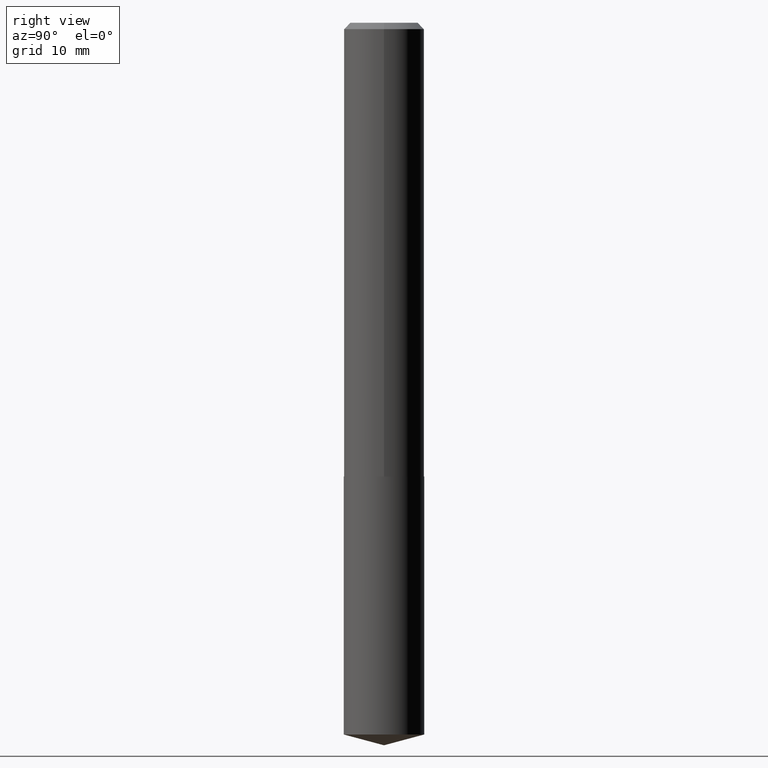
[diagram: clean part render]
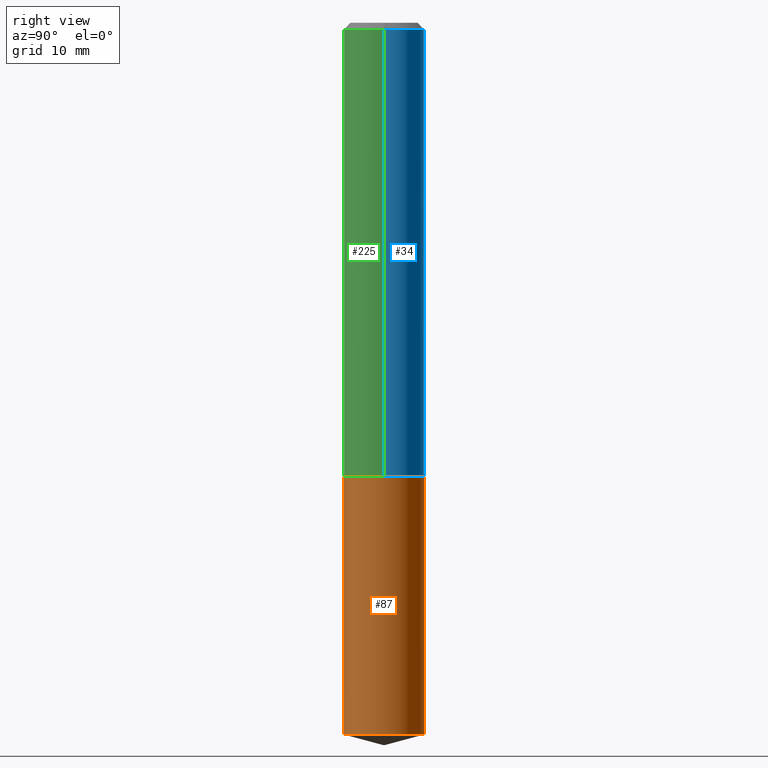
[diagram: same view with three faces highlighted in distinct colors, each labeled with its STEP entity id]
A machine part, right view with three faces highlighted in distinct colors.
Their STEP definitions:

[orange] entity #87 — the highlighted cylindrical surface (partial cylindrical patch) has radius 4.9505 mm, axis along (-0, 0, 1).
#3 = ORIENTED_EDGE ( 'NONE', *, *, #290, .T. ) ;
#23 = CARTESIAN_POINT ( 'NONE',  ( 1.384847791996519796E-15, 0.1948999999999923294, -2.200800000000000090 ) ) ;
#28 = CARTESIAN_POINT ( 'NONE',  ( -1.360979425880999252E-15, -0.1949000000000076782, -2.200799999999999201 ) ) ;
#37 = CARTESIAN_POINT ( 'NONE',  ( 5.381987748652247650E-29, -7.684052130525994609E-15, -2.200799999999999645 ) ) ;
#38 = EDGE_CURVE ( 'NONE', #44, #331, #320, .T. ) ;
#44 = VERTEX_POINT ( 'NONE', #246 ) ;
#51 = VECTOR ( 'NONE', #380, 39.37007874015748143 ) ;
#52 = FACE_OUTER_BOUND ( 'NONE', #362, .T. ) ;
#70 = DIRECTION ( 'NONE',  ( -6.982962677686266711E-15, -1.000000000000000000, 2.803332984776052637E-15 ) ) ;
#83 = CARTESIAN_POINT ( 'NONE',  ( 8.441055792269541156E-29, -1.205133864778130519E-14, -3.451676702395174878 ) ) ;
#87 = ADVANCED_FACE ( 'NONE', ( #52 ), #341, .T. ) ;
#105 = AXIS2_PLACEMENT_3D ( 'NONE', #374, #346, #161 ) ;
#106 = AXIS2_PLACEMENT_3D ( 'NONE', #83, #294, #226 ) ;
#120 = VERTEX_POINT ( 'NONE', #251 ) ;
#137 = DIRECTION ( 'NONE',  ( -2.445539226815718416E-29, 3.491380492492059184E-15, 1.000000000000000000 ) ) ;
#141 = CARTESIAN_POINT ( 'NONE',  ( 1.384847791996488833E-15, 0.1948999999999923016, -2.200800000000000090 ) ) ;
#161 = DIRECTION ( 'NONE',  ( -6.982962677686266711E-15, -1.000000000000000000, 2.803332984776052637E-15 ) ) ;
#203 = LINE ( 'NONE', #141, #51 ) ;
#210 = ORIENTED_EDGE ( 'NONE', *, *, #248, .F. ) ;
#217 = CARTESIAN_POINT ( 'NONE',  ( -1.360979425880968486E-15, -0.1949000000000119803, -3.451676702395174434 ) ) ;
#219 = VERTEX_POINT ( 'NONE', #217 ) ;
#221 = AXIS2_PLACEMENT_3D ( 'NONE', #37, #270, #70 ) ;
#226 = DIRECTION ( 'NONE',  ( -6.982962677686266711E-15, -1.000000000000000000, 2.803332984776052637E-15 ) ) ;
#235 = CIRCLE ( 'NONE', #106, 0.1948999999999999899 ) ;
#246 = CARTESIAN_POINT ( 'NONE',  ( -1.360979425880999252E-15, -0.1949000000000076782, -2.200799999999999201 ) ) ;
#248 = EDGE_CURVE ( 'NONE', #219, #44, #284, .T. ) ;
#251 = CARTESIAN_POINT ( 'NONE',  ( 1.384847791996519007E-15, 0.1948999999999878885, -3.451676702395175766 ) ) ;
#270 = DIRECTION ( 'NONE',  ( -2.445539226815718416E-29, 3.491380492492059184E-15, 1.000000000000000000 ) ) ;
#284 = LINE ( 'NONE', #28, #315 ) ;
#290 = EDGE_CURVE ( 'NONE', #219, #120, #235, .T. ) ;
#294 = DIRECTION ( 'NONE',  ( -2.445539226815718416E-29, 3.491380492492059184E-15, 1.000000000000000000 ) ) ;
#315 = VECTOR ( 'NONE', #137, 39.37007874015748143 ) ;
#320 = CIRCLE ( 'NONE', #221, 0.1948999999999999899 ) ;
#325 = EDGE_CURVE ( 'NONE', #120, #331, #203, .T. ) ;
#331 = VERTEX_POINT ( 'NONE', #23 ) ;
#336 = ORIENTED_EDGE ( 'NONE', *, *, #38, .F. ) ;
#341 = CYLINDRICAL_SURFACE ( 'NONE', #105, 0.1948999999999999899 ) ;
#346 = DIRECTION ( 'NONE',  ( -2.445539226815718416E-29, 3.491380492492059184E-15, 1.000000000000000000 ) ) ;
#362 = EDGE_LOOP ( 'NONE', ( #3, #386, #336, #210 ) ) ;
#374 = CARTESIAN_POINT ( 'NONE',  ( 5.381987748652247650E-29, -7.684052130525994609E-15, -2.200799999999999645 ) ) ;
#380 = DIRECTION ( 'NONE',  ( -2.445539226815718416E-29, 3.491380492492059184E-15, 1.000000000000000000 ) ) ;
#386 = ORIENTED_EDGE ( 'NONE', *, *, #325, .T. ) ;

[blue] entity #34 — the highlighted cylindrical surface (partial cylindrical patch) has radius 4.9505 mm, axis along (-0, 0, 1).
#1 = FACE_OUTER_BOUND ( 'NONE', #18, .T. ) ;
#5 = DIRECTION ( 'NONE',  ( 1.000000000000000000, -6.982962677686266711E-15, 4.876176775795935232E-29 ) ) ;
#18 = EDGE_LOOP ( 'NONE', ( #42, #308, #69, #148 ) ) ;
#19 = DIRECTION ( 'NONE',  ( -2.445468806185136597E-29, 3.491481338843145583E-15, 1.000000000000000000 ) ) ;
#20 = CARTESIAN_POINT ( 'NONE',  ( -0.1949000000000001565, 1.384847791996436374E-15, -9.587004490906818331E-30 ) ) ;
#34 = ADVANCED_FACE ( 'NONE', ( #1 ), #333, .T. ) ;
#42 = ORIENTED_EDGE ( 'NONE', *, *, #194, .T. ) ;
#69 = ORIENTED_EDGE ( 'NONE', *, *, #179, .F. ) ;
#79 = CARTESIAN_POINT ( 'NONE',  ( 0.1949000000000001565, -1.360979425881054472E-15, 9.503668536026285822E-30 ) ) ;
#92 = VECTOR ( 'NONE', #316, 39.37007874015748143 ) ;
#96 = VERTEX_POINT ( 'NONE', #97 ) ;
#97 = CARTESIAN_POINT ( 'NONE',  ( -0.1949000000000002952, -6.297458597860134956E-15, -2.200299999999999923 ) ) ;
#98 = CARTESIAN_POINT ( 'NONE',  ( 5.380765014249154849E-29, -7.682306389856572316E-15, -2.200299999999999923 ) ) ;
#107 = CARTESIAN_POINT ( 'NONE',  ( 0.1949000000000002952, -9.043285815737626985E-15, -2.200299999999999923 ) ) ;
#109 = EDGE_CURVE ( 'NONE', #263, #134, #223, .T. ) ;
#116 = VECTOR ( 'NONE', #342, 39.37007874015748143 ) ;
#127 = DIRECTION ( 'NONE',  ( -2.445468806185136597E-29, 3.491481338843145583E-15, 1.000000000000000000 ) ) ;
#134 = VERTEX_POINT ( 'NONE', #276 ) ;
#139 = CARTESIAN_POINT ( 'NONE',  ( -0.1948999999999999899, -2.510859798851272954E-15, -0.03125000000000022898 ) ) ;
#148 = ORIENTED_EDGE ( 'NONE', *, *, #109, .F. ) ;
#179 = EDGE_CURVE ( 'NONE', #134, #274, #288, .T. ) ;
#183 = CARTESIAN_POINT ( 'NONE',  ( 0.000000000000000000, 0.000000000000000000, 0.000000000000000000 ) ) ;
#191 = LINE ( 'NONE', #20, #92 ) ;
#194 = EDGE_CURVE ( 'NONE', #263, #96, #296, .T. ) ;
#197 = AXIS2_PLACEMENT_3D ( 'NONE', #98, #19, #313 ) ;
#223 = LINE ( 'NONE', #79, #116 ) ;
#231 = EDGE_CURVE ( 'NONE', #96, #274, #191, .T. ) ;
#254 = CARTESIAN_POINT ( 'NONE',  ( 7.642090019328607917E-31, -1.091087918388491006E-16, -0.03125000000000022898 ) ) ;
#263 = VERTEX_POINT ( 'NONE', #107 ) ;
#274 = VERTEX_POINT ( 'NONE', #139 ) ;
#276 = CARTESIAN_POINT ( 'NONE',  ( 0.1948999999999999899, -1.470088217719902192E-15, -0.03125000000000022898 ) ) ;
#280 = AXIS2_PLACEMENT_3D ( 'NONE', #254, #127, #371 ) ;
#288 = CIRCLE ( 'NONE', #280, 0.1948999999999999899 ) ;
#296 = CIRCLE ( 'NONE', #197, 0.1949000000000002952 ) ;
#305 = DIRECTION ( 'NONE',  ( -2.445468806185136597E-29, 3.491481338843145583E-15, 1.000000000000000000 ) ) ;
#308 = ORIENTED_EDGE ( 'NONE', *, *, #231, .T. ) ;
#313 = DIRECTION ( 'NONE',  ( 1.000000000000000000, -6.982962677686263555E-15, 0.000000000000000000 ) ) ;
#316 = DIRECTION ( 'NONE',  ( -2.445468806185136877E-29, 3.491481338843145188E-15, 1.000000000000000000 ) ) ;
#333 = CYLINDRICAL_SURFACE ( 'NONE', #387, 0.1949000000000001565 ) ;
#342 = DIRECTION ( 'NONE',  ( -2.445468806185136877E-29, 3.491481338843145188E-15, 1.000000000000000000 ) ) ;
#371 = DIRECTION ( 'NONE',  ( 1.000000000000000000, -6.982962677686266711E-15, 0.000000000000000000 ) ) ;
#387 = AXIS2_PLACEMENT_3D ( 'NONE', #183, #305, #5 ) ;

[green] entity #225 — the highlighted cylindrical surface (partial cylindrical patch) has radius 4.9505 mm, axis along (-0, 0, 1).
#14 = ORIENTED_EDGE ( 'NONE', *, *, #145, .T. ) ;
#20 = CARTESIAN_POINT ( 'NONE',  ( -0.1949000000000001565, 1.384847791996436374E-15, -9.587004490906818331E-30 ) ) ;
#43 = AXIS2_PLACEMENT_3D ( 'NONE', #100, #189, #218 ) ;
#50 = CYLINDRICAL_SURFACE ( 'NONE', #43, 0.1949000000000001565 ) ;
#53 = EDGE_CURVE ( 'NONE', #274, #134, #130, .T. ) ;
#60 = AXIS2_PLACEMENT_3D ( 'NONE', #128, #156, #378 ) ;
#74 = CARTESIAN_POINT ( 'NONE',  ( 5.380765014249154849E-29, -7.682306389856572316E-15, -2.200299999999999923 ) ) ;
#76 = FACE_OUTER_BOUND ( 'NONE', #152, .T. ) ;
#77 = DIRECTION ( 'NONE',  ( 1.000000000000000000, -6.982962677686263555E-15, 0.000000000000000000 ) ) ;
#79 = CARTESIAN_POINT ( 'NONE',  ( 0.1949000000000001565, -1.360979425881054472E-15, 9.503668536026285822E-30 ) ) ;
#92 = VECTOR ( 'NONE', #316, 39.37007874015748143 ) ;
#96 = VERTEX_POINT ( 'NONE', #97 ) ;
#97 = CARTESIAN_POINT ( 'NONE',  ( -0.1949000000000002952, -6.297458597860134956E-15, -2.200299999999999923 ) ) ;
#100 = CARTESIAN_POINT ( 'NONE',  ( 0.000000000000000000, 0.000000000000000000, 0.000000000000000000 ) ) ;
#107 = CARTESIAN_POINT ( 'NONE',  ( 0.1949000000000002952, -9.043285815737626985E-15, -2.200299999999999923 ) ) ;
#109 = EDGE_CURVE ( 'NONE', #263, #134, #223, .T. ) ;
#116 = VECTOR ( 'NONE', #342, 39.37007874015748143 ) ;
#125 = ORIENTED_EDGE ( 'NONE', *, *, #53, .F. ) ;
#128 = CARTESIAN_POINT ( 'NONE',  ( 7.642090019328607917E-31, -1.091087918388491006E-16, -0.03125000000000022898 ) ) ;
#130 = CIRCLE ( 'NONE', #60, 0.1948999999999999899 ) ;
#134 = VERTEX_POINT ( 'NONE', #276 ) ;
#139 = CARTESIAN_POINT ( 'NONE',  ( -0.1948999999999999899, -2.510859798851272954E-15, -0.03125000000000022898 ) ) ;
#145 = EDGE_CURVE ( 'NONE', #96, #263, #168, .T. ) ;
#152 = EDGE_LOOP ( 'NONE', ( #245, #14, #207, #125 ) ) ;
#156 = DIRECTION ( 'NONE',  ( -2.445468806185136597E-29, 3.491481338843145583E-15, 1.000000000000000000 ) ) ;
#168 = CIRCLE ( 'NONE', #366, 0.1949000000000002952 ) ;
#189 = DIRECTION ( 'NONE',  ( -2.445468806185136597E-29, 3.491481338843145583E-15, 1.000000000000000000 ) ) ;
#191 = LINE ( 'NONE', #20, #92 ) ;
#192 = DIRECTION ( 'NONE',  ( -2.445468806185136597E-29, 3.491481338843145583E-15, 1.000000000000000000 ) ) ;
#207 = ORIENTED_EDGE ( 'NONE', *, *, #109, .T. ) ;
#218 = DIRECTION ( 'NONE',  ( 1.000000000000000000, -6.982962677686266711E-15, 4.876176775795935232E-29 ) ) ;
#223 = LINE ( 'NONE', #79, #116 ) ;
#225 = ADVANCED_FACE ( 'NONE', ( #76 ), #50, .T. ) ;
#231 = EDGE_CURVE ( 'NONE', #96, #274, #191, .T. ) ;
#245 = ORIENTED_EDGE ( 'NONE', *, *, #231, .F. ) ;
#263 = VERTEX_POINT ( 'NONE', #107 ) ;
#274 = VERTEX_POINT ( 'NONE', #139 ) ;
#276 = CARTESIAN_POINT ( 'NONE',  ( 0.1948999999999999899, -1.470088217719902192E-15, -0.03125000000000022898 ) ) ;
#316 = DIRECTION ( 'NONE',  ( -2.445468806185136877E-29, 3.491481338843145188E-15, 1.000000000000000000 ) ) ;
#342 = DIRECTION ( 'NONE',  ( -2.445468806185136877E-29, 3.491481338843145188E-15, 1.000000000000000000 ) ) ;
#366 = AXIS2_PLACEMENT_3D ( 'NONE', #74, #192, #77 ) ;
#378 = DIRECTION ( 'NONE',  ( 1.000000000000000000, -6.982962677686266711E-15, 0.000000000000000000 ) ) ;